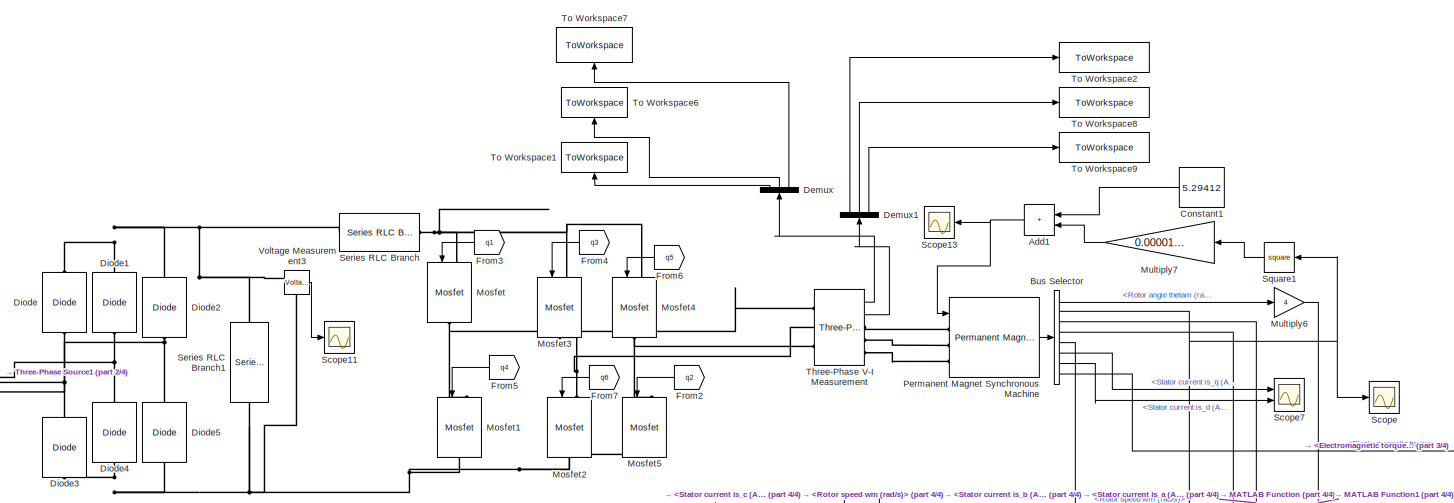
[diagram: root canvas - part 1/4, top center region]
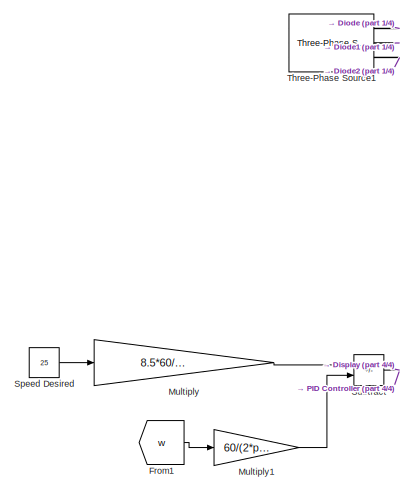
[diagram: root canvas - part 2/4, middle left region]
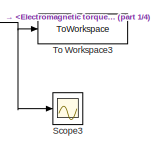
[diagram: root canvas - part 3/4, middle right region]
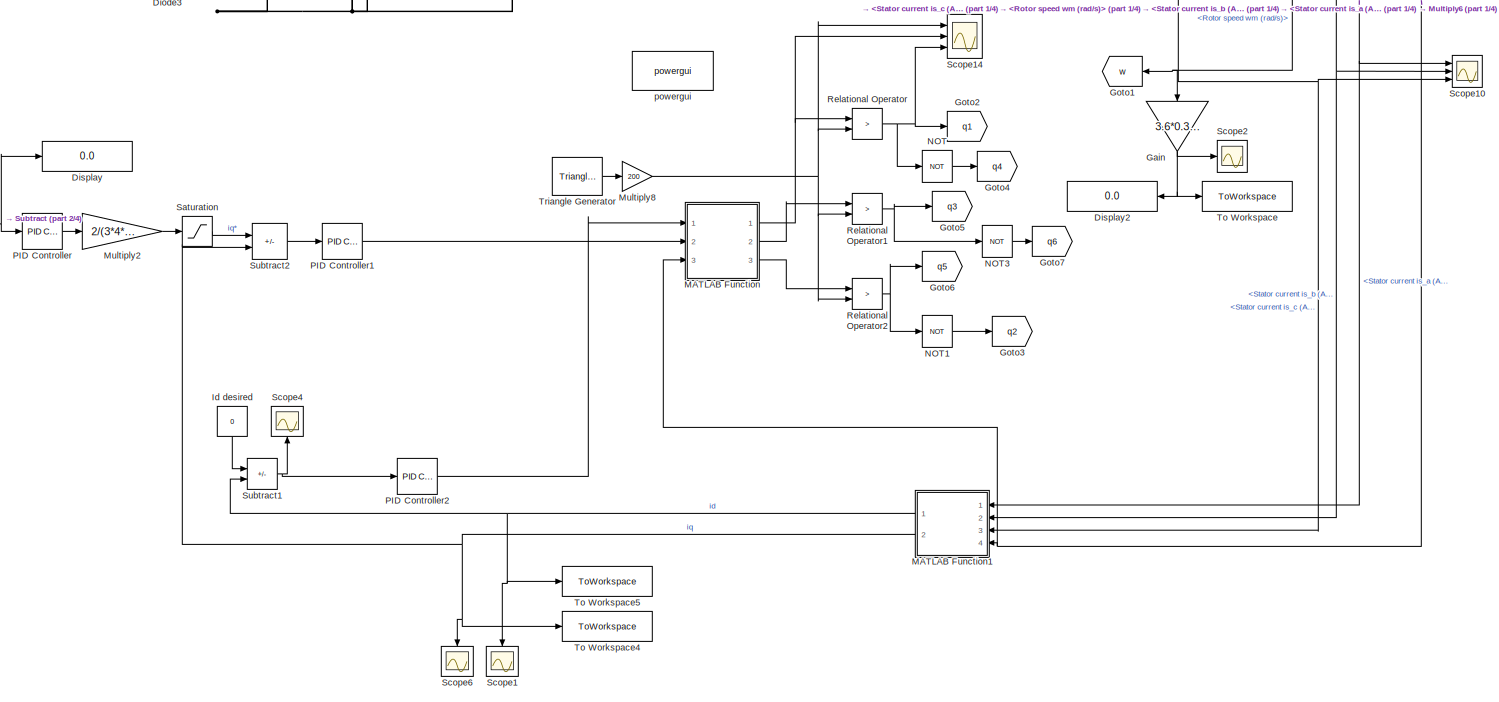
[diagram: root canvas - part 4/4, bottom center region]
MODEL slx_197af0155f57
KIND model
CONFIG AbsTol = auto
CONFIG EnableMultiTasking = off
CONFIG FixedStep = auto
CONFIG MaxStep = auto
CONFIG MinStep = auto
CONFIG RelTol = 1e-3
CONFIG SampleTimeConstraint = Unconstrained
CONFIG SolverName = VariableStepAuto
CONFIG StartTime = 0.0
CONFIG StopTime = 0.5
BLOCK [Sum] Add1
  IconShape = rectangular
  NameLocation = top
  Ports = [2, 1]
BLOCK [BusSelector] Bus Selector
  OutputSignals = Rotor angle thetam (rad),Rotor speed wm (rad/s),Stator current is_a (A),Stator current is_b (A),Stator current is_c (A),Stator current is_q (A),Stator current is_d (A),Electromagnetic torque Te (N*m)
  Ports = [1, 8]
BLOCK [Constant] Constant1
  NameLocation = top
  Value = 5.29412
BLOCK [Demux] Demux
  NameLocation = right
  Outputs = 3
  Ports = [1, 3]
BLOCK [Demux] Demux1
  NameLocation = right
  Outputs = 3
  Ports = [1, 3]
BLOCK [Reference] Diode  REF=spsDiodeLib/Diode
  NameLocation = right
  Ports = [0, 0, 0, 0, 0, 1, 1]
  SourceBlock = spsDiodeLib/Diode
  SourceProductBaseCode = PS
  SourceType = Diode
BLOCK [Reference] Diode1  REF=spsDiodeLib/Diode
  NameLocation = right
  Ports = [0, 0, 0, 0, 0, 1, 1]
  SourceBlock = spsDiodeLib/Diode
  SourceProductBaseCode = PS
  SourceType = Diode
BLOCK [Reference] Diode2  REF=spsDiodeLib/Diode
  NameLocation = right
  Ports = [0, 0, 0, 0, 0, 1, 1]
  SourceBlock = spsDiodeLib/Diode
  SourceProductBaseCode = PS
  SourceType = Diode
BLOCK [Reference] Diode3  REF=spsDiodeLib/Diode
  NameLocation = right
  Ports = [0, 0, 0, 0, 0, 1, 1]
  SourceBlock = spsDiodeLib/Diode
  SourceProductBaseCode = PS
  SourceType = Diode
BLOCK [Reference] Diode4  REF=spsDiodeLib/Diode
  NameLocation = right
  Ports = [0, 0, 0, 0, 0, 1, 1]
  SourceBlock = spsDiodeLib/Diode
  SourceProductBaseCode = PS
  SourceType = Diode
BLOCK [Reference] Diode5  REF=spsDiodeLib/Diode
  NameLocation = right
  Ports = [0, 0, 0, 0, 0, 1, 1]
  SourceBlock = spsDiodeLib/Diode
  SourceProductBaseCode = PS
  SourceType = Diode
BLOCK [Display] Display
  Decimation = 1
  Ports = [1]
BLOCK [Display] Display2
  Decimation = 1
  NameLocation = top
  Ports = [1]
BLOCK [From] From1
  GotoTag = w
BLOCK [From] From2
  GotoTag = q2
  NameLocation = top
BLOCK [From] From3
  GotoTag = q1
  NameLocation = top
BLOCK [From] From4
  GotoTag = q3
  NameLocation = top
BLOCK [From] From5
  GotoTag = q4
  NameLocation = top
BLOCK [From] From6
  GotoTag = q5
  NameLocation = top
BLOCK [From] From7
  GotoTag = q6
  NameLocation = top
BLOCK [Gain] Gain
  Gain = 3.6*0.3/8.5
  NameLocation = left
BLOCK [Goto] Goto1
  GotoTag = w
  NameLocation = top
BLOCK [Goto] Goto2
  GotoTag = q1
BLOCK [Goto] Goto3
  GotoTag = q2
BLOCK [Goto] Goto4
  GotoTag = q4
BLOCK [Goto] Goto5
  GotoTag = q3
BLOCK [Goto] Goto6
  GotoTag = q5
BLOCK [Goto] Goto7
  GotoTag = q6
BLOCK [Constant] Id desired
  NameLocation = left
  Value = 0
  VectorParams1D = off
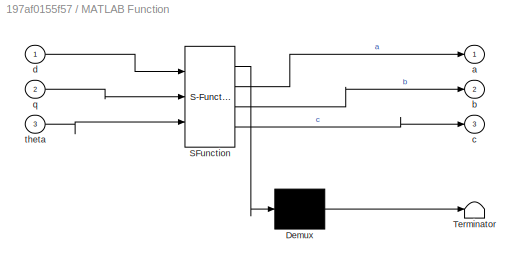
BLOCK [SubSystem] MATLAB Function
  ErrorFcn = Stateflow.Translate.translate
  PermitHierarchicalResolution = ExplicitOnly
  Ports = [3, 3]
  RequestExecContextInheritance = off
  SFBlockType = MATLAB Function
  TreatAsAtomicUnit = on
BLOCK [Demux] MATLAB Function/ Demux 
  Outputs = 1
  Ports = [1, 1]
BLOCK [S-Function] MATLAB Function/ SFunction 
  EnableBusSupport = on
  FunctionName = sf_sfun
  PortCounts = [3 4]
  Ports = [3, 4]
  SFcnIsStateOwnerBlock = off
  SFunctionDeploymentMode = off
  Tag = Stateflow S-Function 2
BLOCK [Terminator] MATLAB Function/ Terminator 
BLOCK [Outport] MATLAB Function/a
BLOCK [Outport] MATLAB Function/b
  Port = 2
BLOCK [Outport] MATLAB Function/c
  Port = 3
BLOCK [Inport] MATLAB Function/d
BLOCK [Inport] MATLAB Function/q
  Port = 2
BLOCK [Inport] MATLAB Function/theta
  Port = 3
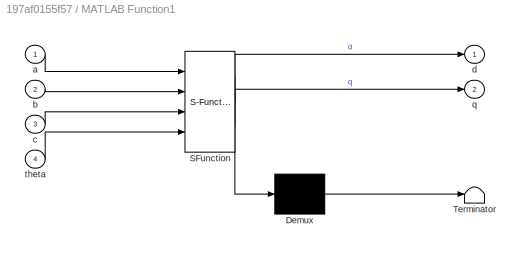
BLOCK [SubSystem] MATLAB Function1
  ErrorFcn = Stateflow.Translate.translate
  NameLocation = top
  PermitHierarchicalResolution = ExplicitOnly
  Ports = [4, 2]
  RequestExecContextInheritance = off
  SFBlockType = MATLAB Function
  TreatAsAtomicUnit = on
BLOCK [Demux] MATLAB Function1/ Demux 
  Outputs = 1
  Ports = [1, 1]
BLOCK [S-Function] MATLAB Function1/ SFunction 
  EnableBusSupport = on
  FunctionName = sf_sfun
  PortCounts = [4 3]
  Ports = [4, 3]
  SFcnIsStateOwnerBlock = off
  SFunctionDeploymentMode = off
  Tag = Stateflow S-Function 1
BLOCK [Terminator] MATLAB Function1/ Terminator 
BLOCK [Inport] MATLAB Function1/a
BLOCK [Inport] MATLAB Function1/b
  Port = 2
BLOCK [Inport] MATLAB Function1/c
  Port = 3
BLOCK [Outport] MATLAB Function1/d
BLOCK [Outport] MATLAB Function1/q
  Port = 2
BLOCK [Inport] MATLAB Function1/theta
  Port = 4
BLOCK [Reference] Mosfet  REF=spsMosfetLib/Mosfet
  NameLocation = left
  Ports = [1, 0, 0, 0, 0, 1, 1]
  SourceBlock = spsMosfetLib/Mosfet
  SourceProductBaseCode = PS
  SourceType = Mosfet
BLOCK [Reference] Mosfet1  REF=spsMosfetLib/Mosfet
  NameLocation = left
  Ports = [1, 0, 0, 0, 0, 1, 1]
  SourceBlock = spsMosfetLib/Mosfet
  SourceProductBaseCode = PS
  SourceType = Mosfet
BLOCK [Reference] Mosfet2  REF=spsMosfetLib/Mosfet
  NameLocation = left
  Ports = [1, 0, 0, 0, 0, 1, 1]
  SourceBlock = spsMosfetLib/Mosfet
  SourceProductBaseCode = PS
  SourceType = Mosfet
BLOCK [Reference] Mosfet3  REF=spsMosfetLib/Mosfet
  NameLocation = left
  Ports = [1, 0, 0, 0, 0, 1, 1]
  SourceBlock = spsMosfetLib/Mosfet
  SourceProductBaseCode = PS
  SourceType = Mosfet
BLOCK [Reference] Mosfet4  REF=spsMosfetLib/Mosfet
  NameLocation = left
  Ports = [1, 0, 0, 0, 0, 1, 1]
  SourceBlock = spsMosfetLib/Mosfet
  SourceProductBaseCode = PS
  SourceType = Mosfet
BLOCK [Reference] Mosfet5  REF=spsMosfetLib/Mosfet
  NameLocation = left
  Ports = [1, 0, 0, 0, 0, 1, 1]
  SourceBlock = spsMosfetLib/Mosfet
  SourceProductBaseCode = PS
  SourceType = Mosfet
BLOCK [Gain] Multiply
  Gain = 8.5*60/(3.6*0.3*2*pi)
BLOCK [Gain] Multiply1
  Gain = 60/(2*pi)
BLOCK [Gain] Multiply2
  Gain = 2/(3*4*0.11)
BLOCK [Gain] Multiply6
  Gain = 4
BLOCK [Gain] Multiply7
  Gain = 0.000015387747
  NameLocation = top
BLOCK [Gain] Multiply8
  Gain = 200
BLOCK [Logic] NOT
  AllPortsSameDT = off
  IconShape = distinctive
  Operator = NOT
  OutDataTypeStr = boolean
  Ports = [1, 1]
BLOCK [Logic] NOT1
  AllPortsSameDT = off
  IconShape = distinctive
  Operator = NOT
  OutDataTypeStr = boolean
  Ports = [1, 1]
BLOCK [Logic] NOT3
  AllPortsSameDT = off
  IconShape = distinctive
  Operator = NOT
  OutDataTypeStr = boolean
  Ports = [1, 1]
BLOCK [Reference] PID Controller  REF=slpidlib/PID Controller
  Ports = [1, 1]
  SourceBlock = slpidlib/PID Controller
  SourceProductBaseCode = SL
  SourceType = PID 1dof
BLOCK [Reference] PID Controller1  REF=slpidlib/PID Controller
  Ports = [1, 1]
  SourceBlock = slpidlib/PID Controller
  SourceProductBaseCode = SL
  SourceType = PID 1dof
BLOCK [Reference] PID Controller2  REF=slpidlib/PID Controller
  Ports = [1, 1]
  SourceBlock = slpidlib/PID Controller
  SourceProductBaseCode = SL
  SourceType = PID 1dof
BLOCK [Reference] Permanent Magnet Synchronous Machine  REF=spsPermanentMagnetSynchronousMachineLib/Permanent Magnet
Synchronous Machine
  Ports = [1, 1, 0, 0, 0, 3]
  SourceBlock = spsPermanentMagnetSynchronousMachineLib/Permanent Magnet\nSynchronous Machine
  SourceProductBaseCode = PS
  SourceType = Permanent Magnet Synchronous Machine
BLOCK [RelationalOperator] Relational Operator
  InputSameDT = off
  Operator = >
  OutDataTypeStr = boolean
  Ports = [2, 1]
  RndMeth = Simplest
BLOCK [RelationalOperator] Relational Operator1
  InputSameDT = off
  Operator = >
  OutDataTypeStr = boolean
  Ports = [2, 1]
  RndMeth = Simplest
BLOCK [RelationalOperator] Relational Operator2
  InputSameDT = off
  Operator = >
  OutDataTypeStr = boolean
  Ports = [2, 1]
  RndMeth = Simplest
BLOCK [Saturate] Saturation
  LowerLimit = -530
  UpperLimit = 530
BLOCK [Scope] Scope
  Floating = off
  NumInputPorts = 1
  Ports = [1]
  ScopeSpecificationString = Simulink.scopes.TimeScopeBlockCfg('CurrentConfiguration', extmgr.ConfigurationSet(extmgr.Configuration('Core','General UI',true),extmgr.Configuration('Core','Source UI',true),extmgr.Configuration('Sources','WiredSimulink',true,'DataLoggingVariableName','ScopeData2'),extmgr.Configuration('Visuals','Time Domain',true,'SerializedDisplays',{struct('MinYLimReal','270.53932','MaxYLimReal','319.77531','Y...<+1441ch>
BLOCK [Scope] Scope1
  Floating = off
  NameLocation = left
  NumInputPorts = 1
  Ports = [1]
  ScopeSpecificationString = Simulink.scopes.TimeScopeBlockCfg('CurrentConfiguration', extmgr.ConfigurationSet(extmgr.Configuration('Core','General UI',true),extmgr.Configuration('Core','Source UI',true),extmgr.Configuration('Sources','WiredSimulink',true,'DataLoggingVariableName','ScopeData1'),extmgr.Configuration('Visuals','Time Domain',true,'SerializedDisplays',{struct('MinYLimReal','-98.4031','MaxYLimReal','81.75191','YLa...<+1436ch>
BLOCK [Scope] Scope10
  Floating = off
  NumInputPorts = 3
  Ports = [3]
  ScopeSpecificationString = Simulink.scopes.TimeScopeBlockCfg('CurrentConfiguration', extmgr.ConfigurationSet(extmgr.Configuration('Core','General UI',true),extmgr.Configuration('Core','Source UI',true),extmgr.Configuration('Sources','WiredSimulink',true,'DataLoggingVariableName','ScopeData5'),extmgr.Configuration('Visuals','Time Domain',true,'SerializedDisplays',{struct('MinYLimReal','-49.60866','MaxYLimReal','24.90315','YL...<+1914ch>
BLOCK [Scope] Scope11
  Floating = off
  NumInputPorts = 1
  Ports = [1]
  ScopeSpecificationString = Simulink.scopes.TimeScopeBlockCfg('CurrentConfiguration', extmgr.ConfigurationSet(extmgr.Configuration('Core','General UI',true),extmgr.Configuration('Core','Source UI',true),extmgr.Configuration('Sources','WiredSimulink',true,'DataLoggingVariableName','ScopeData1'),extmgr.Configuration('Visuals','Time Domain',true,'SerializedDisplays',{struct('MinYLimReal','307.83518','MaxYLimReal','835.1857','YL...<+1462ch>
BLOCK [Scope] Scope13
  Floating = off
  NameLocation = top
  NumInputPorts = 1
  Ports = [1]
  ScopeSpecificationString = Simulink.scopes.TimeScopeBlockCfg('CurrentConfiguration', extmgr.ConfigurationSet(extmgr.Configuration('Core','General UI',true),extmgr.Configuration('Core','Source UI',true),extmgr.Configuration('Sources','WiredSimulink',true,'DataLoggingVariableName','ScopeData1'),extmgr.Configuration('Visuals','Time Domain',true,'SerializedDisplays',{struct('MinYLimReal','6.47889','MaxYLimReal','6.54465','YLabe...<+1467ch>
BLOCK [Scope] Scope14
  Floating = off
  NumInputPorts = 3
  Ports = [3]
  ScopeSpecificationString = Simulink.scopes.TimeScopeBlockCfg('CurrentConfiguration', extmgr.ConfigurationSet(extmgr.Configuration('Core','General UI',true),extmgr.Configuration('Core','Source UI',true),extmgr.Configuration('Sources','WiredSimulink',true,'DataLoggingVariableName','ScopeData4'),extmgr.Configuration('Visuals','Time Domain',true,'SerializedDisplays',{struct('MinYLimReal','-1048.38369','MaxYLimReal','920.75207',...<+1570ch>
BLOCK [Scope] Scope2
  Floating = off
  NumInputPorts = 1
  Ports = [1]
  ScopeSpecificationString = Simulink.scopes.TimeScopeBlockCfg('CurrentConfiguration', extmgr.ConfigurationSet(extmgr.Configuration('Core','General UI',true),extmgr.Configuration('Core','Source UI',true),extmgr.Configuration('Sources','WiredSimulink',true,'DataLoggingVariableName','ScopeData2'),extmgr.Configuration('Visuals','Time Domain',true,'SerializedDisplays',{struct('MinYLimReal','34.30893','MaxYLimReal','40.63136','YLa...<+1441ch>
BLOCK [Scope] Scope3
  Floating = off
  NumInputPorts = 1
  Ports = [1]
  ScopeSpecificationString = Simulink.scopes.TimeScopeBlockCfg('CurrentConfiguration', extmgr.ConfigurationSet(extmgr.Configuration('Core','General UI',true),extmgr.Configuration('Core','Source UI',true),extmgr.Configuration('Sources','WiredSimulink',true,'DataLoggingVariableName','ScopeData3'),extmgr.Configuration('Visuals','Time Domain',true,'SerializedDisplays',{struct('MinYLimReal','-50.80032','MaxYLimReal','399.38598','Y...<+1402ch>
BLOCK [Scope] Scope4
  Floating = off
  NameLocation = right
  NumInputPorts = 1
  Ports = [1]
  ScopeSpecificationString = Simulink.scopes.TimeScopeBlockCfg('CurrentConfiguration', extmgr.ConfigurationSet(extmgr.Configuration('Core','General UI',true),extmgr.Configuration('Core','Source UI',true),extmgr.Configuration('Sources','WiredSimulink',true,'DataLoggingVariableName','ScopeData3'),extmgr.Configuration('Visuals','Time Domain',true,'SerializedDisplays',{struct('MinYLimReal','-29.27657','MaxYLimReal','42.76246','YL...<+1401ch>
BLOCK [Scope] Scope6
  Floating = off
  NameLocation = left
  NumInputPorts = 1
  Ports = [1]
  ScopeSpecificationString = Simulink.scopes.TimeScopeBlockCfg('CurrentConfiguration', extmgr.ConfigurationSet(extmgr.Configuration('Core','General UI',true),extmgr.Configuration('Core','Source UI',true),extmgr.Configuration('Sources','WiredSimulink',true,'DataLoggingVariableName','ScopeData5'),extmgr.Configuration('Visuals','Time Domain',true,'SerializedDisplays',{struct('MinYLimReal','-329.54634','MaxYLimReal','733.5264','Y...<+1444ch>
BLOCK [Scope] Scope7
  Floating = off
  NameLocation = top
  NumInputPorts = 2
  Ports = [2]
  ScopeSpecificationString = Simulink.scopes.TimeScopeBlockCfg('CurrentConfiguration', extmgr.ConfigurationSet(extmgr.Configuration('Core','General UI',true),extmgr.Configuration('Core','Source UI',true),extmgr.Configuration('Sources','WiredSimulink',true,'DataLoggingVariableName','ScopeData6'),extmgr.Configuration('Visuals','Time Domain',true,'SerializedDisplays',{struct('MinYLimReal','-347.60284','MaxYLimReal','896.03488','...<+1509ch>
BLOCK [Reference] Series RLC Branch  REF=spsSeriesRLCBranchLib/Series RLC Branch
  Ports = [0, 0, 0, 0, 0, 1, 1]
  SourceBlock = spsSeriesRLCBranchLib/Series RLC Branch
  SourceProductBaseCode = PS
  SourceType = Series RLC Branch
BLOCK [Reference] Series RLC Branch1  REF=spsSeriesRLCBranchLib/Series RLC Branch
  NameLocation = left
  Ports = [0, 0, 0, 0, 0, 1, 1]
  SourceBlock = spsSeriesRLCBranchLib/Series RLC Branch
  SourceProductBaseCode = PS
  SourceType = Series RLC Branch
BLOCK [Constant] Speed Desired
  Value = 25
BLOCK [Math] Square1
  NameLocation = top
  Operator = square
  Ports = [1, 1]
BLOCK [Sum] Subtract
  IconShape = rectangular
  Inputs = +-
  Ports = [2, 1]
BLOCK [Sum] Subtract1
  IconShape = rectangular
  Inputs = +-
  Ports = [2, 1]
BLOCK [Sum] Subtract2
  IconShape = rectangular
  Inputs = +-
  Ports = [2, 1]
BLOCK [Reference] Three-Phase Source1  REF=spsThreePhaseSourceLib/Three-Phase Source
  Ports = [0, 0, 0, 0, 0, 0, 3]
  SourceBlock = spsThreePhaseSourceLib/Three-Phase Source
  SourceProductBaseCode = PS
  SourceType = Three-Phase Source
BLOCK [Reference] Three-Phase V-I Measurement  REF=spsThreePhaseVIMeasurementLib/Three-Phase
V-I Measurement
  Ports = [0, 2, 0, 0, 0, 3, 3]
  SourceBlock = spsThreePhaseVIMeasurementLib/Three-Phase\nV-I Measurement
  SourceProductBaseCode = PS
  SourceType = Three-Phase VI Measurement
BLOCK [ToWorkspace] To Workspace
  FixptAsFi = on
  MaxDataPoints = inf
  Ports = [1]
  SampleTime = -1
  SaveFormat = Timeseries
  VariableName = speed
BLOCK [ToWorkspace] To Workspace1
  FixptAsFi = on
  MaxDataPoints = inf
  NameLocation = right
  Ports = [1]
  SampleTime = -1
  SaveFormat = Timeseries
  VariableName = line_voltage
BLOCK [ToWorkspace] To Workspace2
  FixptAsFi = on
  MaxDataPoints = inf
  Ports = [1]
  SampleTime = -1
  SaveFormat = Timeseries
  VariableName = line_current
BLOCK [ToWorkspace] To Workspace3
  FixptAsFi = on
  MaxDataPoints = inf
  Ports = [1]
  SampleTime = -1
  SaveFormat = Timeseries
  VariableName = torque
BLOCK [ToWorkspace] To Workspace4
  FixptAsFi = on
  MaxDataPoints = inf
  Ports = [1]
  SampleTime = -1
  SaveFormat = Timeseries
  VariableName = Iq
BLOCK [ToWorkspace] To Workspace5
  FixptAsFi = on
  MaxDataPoints = inf
  Ports = [1]
  SampleTime = -1
  SaveFormat = Timeseries
  VariableName = Id
BLOCK [ToWorkspace] To Workspace6
  FixptAsFi = on
  MaxDataPoints = inf
  NameLocation = right
  Ports = [1]
  SampleTime = -1
  SaveFormat = Timeseries
  VariableName = line_voltage1
BLOCK [ToWorkspace] To Workspace7
  FixptAsFi = on
  MaxDataPoints = inf
  NameLocation = right
  Ports = [1]
  SampleTime = -1
  SaveFormat = Timeseries
  VariableName = line_voltage2
BLOCK [ToWorkspace] To Workspace8
  FixptAsFi = on
  MaxDataPoints = inf
  Ports = [1]
  SampleTime = -1
  SaveFormat = Timeseries
  VariableName = line_current1
BLOCK [ToWorkspace] To Workspace9
  FixptAsFi = on
  MaxDataPoints = inf
  Ports = [1]
  SampleTime = -1
  SaveFormat = Timeseries
  VariableName = line_current2
BLOCK [Reference] Triangle Generator  REF=spsTriangleGeneratorLib/Triangle
Generator
  Ports = [0, 1]
  SourceBlock = spsTriangleGeneratorLib/Triangle\nGenerator
  SourceProductBaseCode = PS
  SourceType = Triangle Generator
BLOCK [Reference] Voltage Measurement3  REF=spsVoltageMeasurementLib/Voltage Measurement
  Ports = [0, 1, 0, 0, 0, 2]
  SourceBlock = spsVoltageMeasurementLib/Voltage Measurement
  SourceProductBaseCode = PS
  SourceType = Voltage Measurement
  UserDataPersistent = on
BLOCK [Reference] powergui  REF=spspowerguiLib/powergui
  Ports = []
  Priority = 1
  SourceBlock = spspowerguiLib/powergui
  SourceProductBaseCode = PS
  SourceType = PSB option menu block
NET Add1:1 -> Permanent Magnet Synchronous Machine:1, Scope13:1
LINE Bus Selector:1 -> Multiply6:1
NET Bus Selector:2 -> Gain:1, Goto1:1, Scope:1, Square1:1
NET Bus Selector:3 -> MATLAB Function1:1, Scope10:1
NET Bus Selector:4 -> MATLAB Function1:2, Scope10:2
NET Bus Selector:5 -> MATLAB Function1:3, Scope10:3
LINE Bus Selector:6 -> Scope7:1
LINE Bus Selector:7 -> Scope7:2
NET Bus Selector:8 -> Scope3:1, To Workspace3:1
LINE Constant1:1 -> Add1:1
LINE Demux1:1 -> To Workspace2:1
LINE Demux1:2 -> To Workspace8:1
LINE Demux1:3 -> To Workspace9:1
LINE Demux:1 -> To Workspace1:1
LINE Demux:2 -> To Workspace6:1
LINE Demux:3 -> To Workspace7:1
LINE From1:1 -> Multiply1:1
LINE From2:1 -> Mosfet5:1
LINE From3:1 -> Mosfet:1
LINE From4:1 -> Mosfet3:1
LINE From5:1 -> Mosfet1:1
LINE From6:1 -> Mosfet4:1
LINE From7:1 -> Mosfet2:1
NET Gain:1 -> Display2:1, Scope2:1, To Workspace:1
LINE Id desired:1 -> Subtract1:1
NET MATLAB Function1:1 -> Scope1:1, Subtract1:2, To Workspace5:1
NET MATLAB Function1:2 -> Scope6:1, Subtract2:2, To Workspace4:1
NET MATLAB Function:1 -> Relational Operator:1, Scope14:2
LINE MATLAB Function:2 -> Relational Operator1:1
LINE MATLAB Function:3 -> Relational Operator2:1
LINE Multiply1:1 -> Subtract:2
LINE Multiply2:1 -> Saturation:1
NET Multiply6:1 -> MATLAB Function1:4, MATLAB Function:3
LINE Multiply7:1 -> Add1:2
NET Multiply8:1 -> Relational Operator1:2, Relational Operator2:2, Relational Operator:2, Scope14:1
LINE Multiply:1 -> Subtract:1
LINE NOT1:1 -> Goto3:1
LINE NOT3:1 -> Goto7:1
LINE NOT:1 -> Goto4:1
LINE PID Controller1:1 -> MATLAB Function:2
LINE PID Controller2:1 -> MATLAB Function:1
LINE PID Controller:1 -> Multiply2:1
LINE Permanent Magnet Synchronous Machine:1 -> Bus Selector:1
NET Relational Operator1:1 -> Goto5:1, NOT3:1
NET Relational Operator2:1 -> Goto6:1, NOT1:1
NET Relational Operator:1 -> Goto2:1, NOT:1, Scope14:3
LINE Saturation:1 -> Subtract2:1
LINE Speed Desired:1 -> Multiply:1
LINE Square1:1 -> Multiply7:1
NET Subtract1:1 -> PID Controller2:1, Scope4:1
LINE Subtract2:1 -> PID Controller1:1
NET Subtract:1 -> Display:1, PID Controller:1
LINE Three-Phase V-I Measurement:1 -> Demux:1
LINE Three-Phase V-I Measurement:2 -> Demux1:1
LINE Triangle Generator:1 -> Multiply8:1
LINE Voltage Measurement3:1 -> Scope11:1
PNET net1: Diode1:LConn1 -- Diode4:RConn1 -- Three-Phase Source1:RConn2
PNET net2: Diode1:RConn1 -- Diode2:RConn1 -- Diode:RConn1 -- Series RLC Branch1:LConn1 -- Series RLC Branch:LConn1 -- Voltage Measurement3:LConn1
PNET net3: Diode2:LConn1 -- Diode5:RConn1 -- Three-Phase Source1:RConn3
PNET net4: Diode3:LConn1 -- Diode4:LConn1 -- Diode5:LConn1 -- Mosfet1:RConn1 -- Mosfet2:RConn1 -- Mosfet5:RConn1 -- Series RLC Branch1:RConn1 -- Voltage Measurement3:LConn2
PNET net5: Diode3:RConn1 -- Diode:LConn1 -- Three-Phase Source1:RConn1
PNET net6: Mosfet1:LConn1 -- Mosfet:RConn1 -- Three-Phase V-I Measurement:LConn1
PNET net7: Mosfet2:LConn1 -- Mosfet3:RConn1 -- Three-Phase V-I Measurement:LConn2
PNET net8: Mosfet3:LConn1 -- Mosfet4:LConn1 -- Mosfet:LConn1 -- Series RLC Branch:RConn1
PNET net9: Mosfet4:RConn1 -- Mosfet5:LConn1 -- Three-Phase V-I Measurement:LConn3
PLINE Permanent Magnet Synchronous Machine:LConn1 -- Three-Phase V-I Measurement:RConn1
PLINE Permanent Magnet Synchronous Machine:LConn2 -- Three-Phase V-I Measurement:RConn2
PLINE Permanent Magnet Synchronous Machine:LConn3 -- Three-Phase V-I Measurement:RConn3
note: NET lines group one-source signal fan-out (src -> all destinations, sorted); 1:1 wires keep LINE; PNET lines group multi-terminal physical nets as a canonical sorted terminal list (undirected conserving connections); 2-terminal nets keep the pairwise PLINE form
CHART MATLAB Function1 states=1 transitions=1
  STATE_LABEL 'eML_blk_kernel()'
  STATE_LABEL "SCRIPT:\nfunction [d,q] = abc_to_dq(a,b,c,theta)\n    dq=(2/3)*[cos(theta) cos(theta-2*pi/3) cos(theta-4*pi/3); -sin(theta) -sin(theta-2*pi/3) -sin(theta-4*pi/3)]*[a b c]';\n    d=dq(1);\n    q=dq(2);\nend"
CHART MATLAB Function states=1 transitions=1
  STATE_LABEL 'eML_blk_kernel()'
  STATE_LABEL "SCRIPT:\nfunction [a,b,c] = dq_to_abc(d,q,theta)\n    albe=[cos(theta) -sin(theta); sin(theta) cos(theta)]*[d q]'; %coordinate transformation\n    alfa=albe(1);\n    beta=albe(2);\n    abc=[1 0; -1/2 sqrt(3)/2; -1/2 -sqrt(3)/2]*[alfa beta]'; %space vector transformation\n    a=abc(1);\n    b=abc(2);\n    c=abc(3);\nend"
CHART  states=0 transitions=0
CHART  states=0 transitions=0
